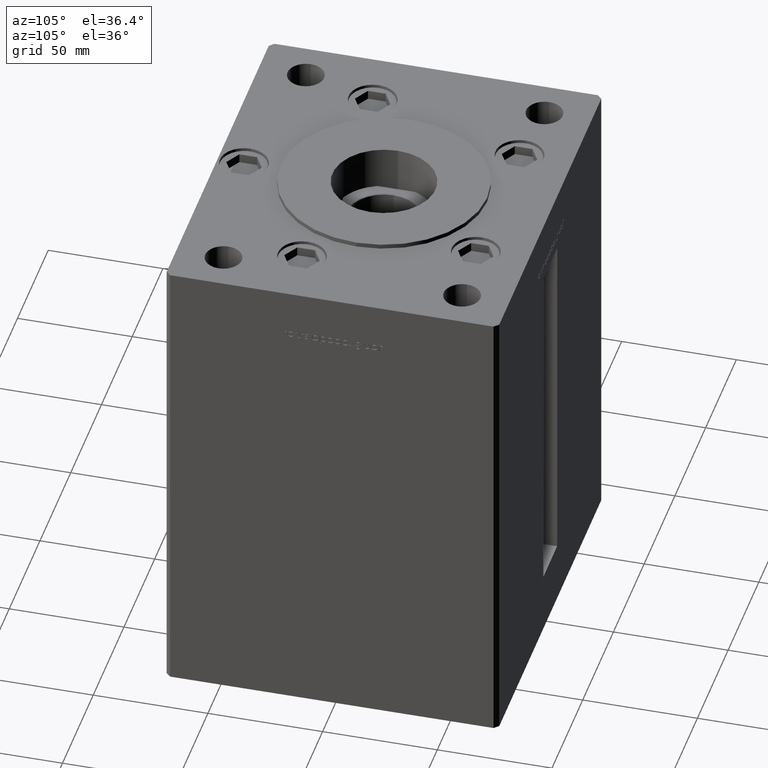
[diagram: clean part render]
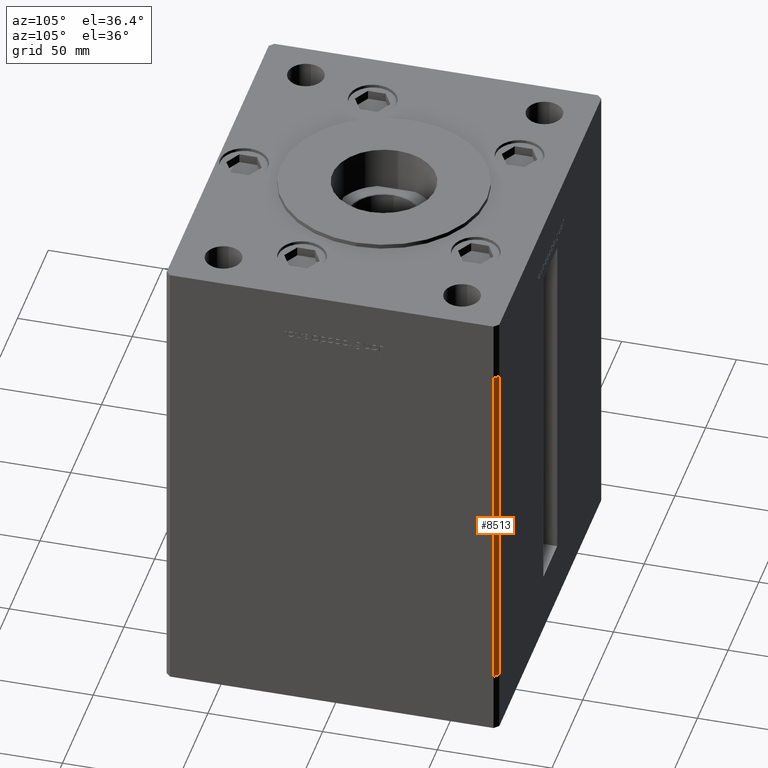
[diagram: same view with one face highlighted and labeled with its STEP entity id]
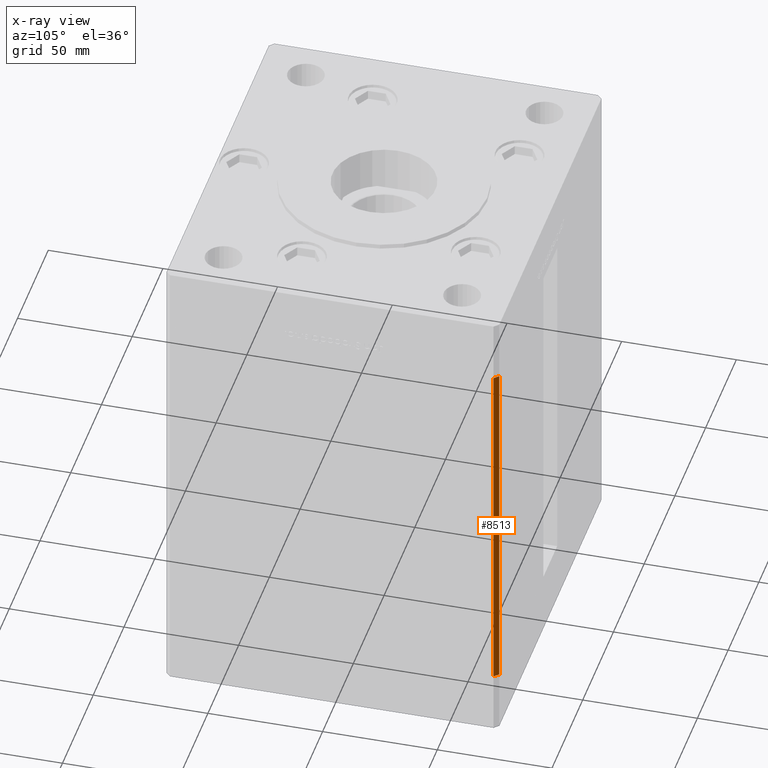
[diagram: x-ray of the same camera — body ghosted, the highlighted face saturated]
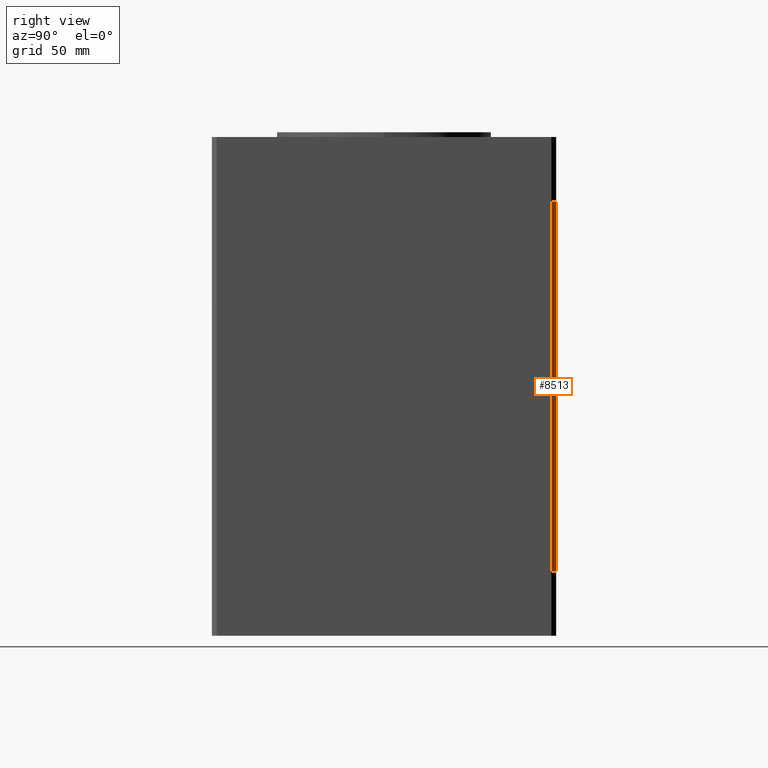
[diagram: same view with one face highlighted and labeled with its STEP entity id]
A machine part, auxiliary view. The second image highlights one B-rep face of the part: STEP entity #8513.
The next image is the same camera in x-ray: the body ghosted, the highlighted face saturated — about 0% of this face is hidden behind the body in this view.
A second angle (right view) of the same face is appended — the face is thin or edge-on in the first view.
In plain terms, the highlighted planar face has unit normal (0.7071, 0.7071, 0).
Its self-contained STEP definition (entity closure, byte-faithful):
#950 = CARTESIAN_POINT ( 'NONE',  ( 85.00000000000001421, 70.49999999999998579, 156.0000000000000000 ) ) ;
#2512 = VERTEX_POINT ( 'NONE', #41725 ) ;
#2780 = VECTOR ( 'NONE', #3178, 1000.000000000000000 ) ;
#3178 = DIRECTION ( 'NONE',  ( -0.000000000000000000, -0.000000000000000000, -1.000000000000000000 ) ) ;
#5806 = EDGE_CURVE ( 'NONE', #26451, #15009, #12135, .T. ) ;
#7602 = EDGE_CURVE ( 'NONE', #15953, #15009, #35024, .T. ) ;
#8513 = ADVANCED_FACE ( 'NONE', ( #24691 ), #12822, .T. ) ;
#9062 = LINE ( 'NONE', #25136, #40604 ) ;
#11421 = ORIENTED_EDGE ( 'NONE', *, *, #7602, .F. ) ;
#11492 = CARTESIAN_POINT ( 'NONE',  ( 85.00000000000001421, 70.49999999999998579, 0.000000000000000000 ) ) ;
#12135 = LINE ( 'NONE', #40059, #2780 ) ;
#12822 = PLANE ( 'NONE',  #37404 ) ;
#15009 = VERTEX_POINT ( 'NONE', #11492 ) ;
#15953 = VERTEX_POINT ( 'NONE', #46117 ) ;
#17112 = ORIENTED_EDGE ( 'NONE', *, *, #5806, .T. ) ;
#18977 = DIRECTION ( 'NONE',  ( -0.7071067811865474617, 0.7071067811865474617, 0.000000000000000000 ) ) ;
#22923 = CARTESIAN_POINT ( 'NONE',  ( 83.00000000000001421, 72.49999999999998579, 156.0000000000000000 ) ) ;
#23770 = EDGE_CURVE ( 'NONE', #2512, #26451, #51334, .T. ) ;
#24691 = FACE_OUTER_BOUND ( 'NONE', #43645, .T. ) ;
#25136 = CARTESIAN_POINT ( 'NONE',  ( 83.00000000000001421, 72.49999999999998579, 156.0000000000000000 ) ) ;
#25910 = DIRECTION ( 'NONE',  ( -0.000000000000000000, -0.000000000000000000, -1.000000000000000000 ) ) ;
#26305 = ORIENTED_EDGE ( 'NONE', *, *, #44275, .F. ) ;
#26451 = VERTEX_POINT ( 'NONE', #950 ) ;
#26905 = ORIENTED_EDGE ( 'NONE', *, *, #23770, .T. ) ;
#27614 = DIRECTION ( 'NONE',  ( 0.7071067811865474617, -0.7071067811865474617, 0.000000000000000000 ) ) ;
#31075 = DIRECTION ( 'NONE',  ( 0.7071067811865474617, -0.7071067811865474617, 0.000000000000000000 ) ) ;
#34301 = VECTOR ( 'NONE', #27614, 1000.000000000000114 ) ;
#35024 = LINE ( 'NONE', #51363, #44925 ) ;
#37404 = AXIS2_PLACEMENT_3D ( 'NONE', #22923, #38996, #18977 ) ;
#38996 = DIRECTION ( 'NONE',  ( 0.7071067811865475727, 0.7071067811865475727, -0.000000000000000000 ) ) ;
#40059 = CARTESIAN_POINT ( 'NONE',  ( 85.00000000000001421, 70.49999999999998579, 156.0000000000000000 ) ) ;
#40604 = VECTOR ( 'NONE', #25910, 1000.000000000000000 ) ;
#41725 = CARTESIAN_POINT ( 'NONE',  ( 83.00000000000001421, 72.49999999999998579, 156.0000000000000000 ) ) ;
#43645 = EDGE_LOOP ( 'NONE', ( #11421, #26305, #26905, #17112 ) ) ;
#44275 = EDGE_CURVE ( 'NONE', #2512, #15953, #9062, .T. ) ;
#44925 = VECTOR ( 'NONE', #31075, 1000.000000000000114 ) ;
#46117 = CARTESIAN_POINT ( 'NONE',  ( 83.00000000000001421, 72.49999999999998579, 0.000000000000000000 ) ) ;
#51334 = LINE ( 'NONE', #51590, #34301 ) ;
#51363 = CARTESIAN_POINT ( 'NONE',  ( 83.00000000000001421, 72.49999999999998579, 0.000000000000000000 ) ) ;
#51590 = CARTESIAN_POINT ( 'NONE',  ( 83.00000000000001421, 72.49999999999998579, 156.0000000000000000 ) ) ;